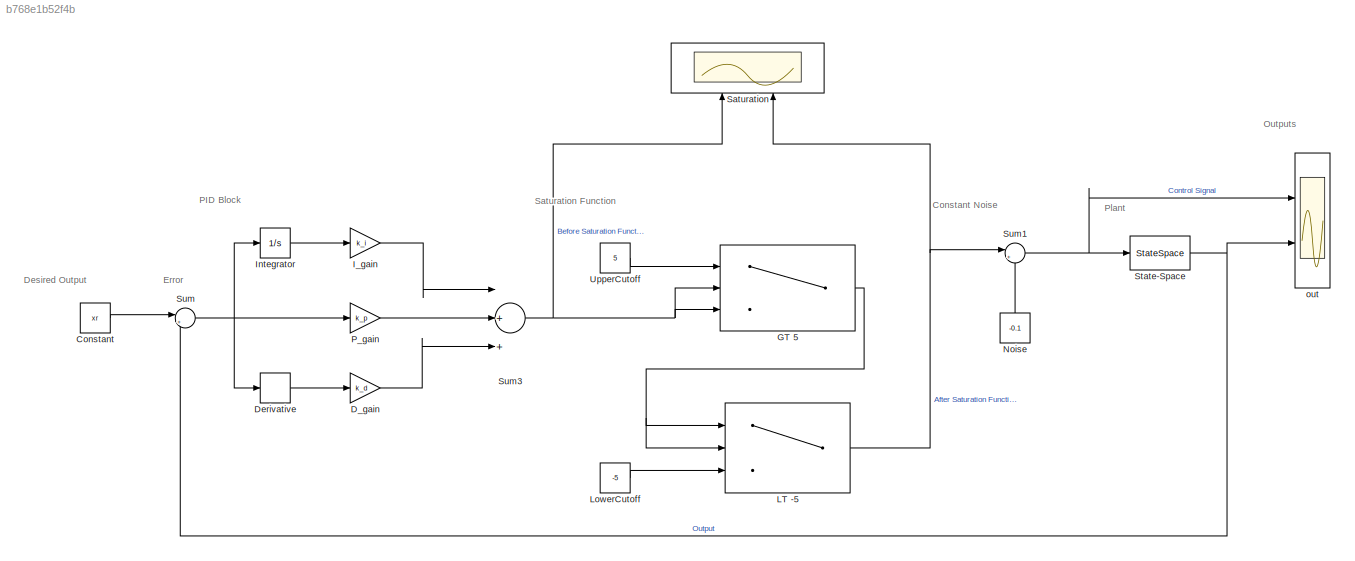
MODEL slx_b768e1b52f4b
KIND model
CONFIG AbsTol = auto
CONFIG FixedStep = auto
CONFIG MaxStep = auto
CONFIG MinStep = auto
CONFIG RelTol = auto
CONFIG SampleTimeConstraint = Unconstrained
CONFIG Solver = ode45
CONFIG SolverMode = Auto
CONFIG SolverName = ode45
CONFIG StartTime = 0.0
CONFIG StopTime = 3000
BLOCK [Constant] Constant
  Value = xr
BLOCK [Gain] D_gain
  Gain = k_d
  OutDataTypeStr = Inherit: Inherit via internal rule
  ParamDataTypeStr = Inherit: Inherit via internal rule
  SaturateOnIntegerOverflow = off
BLOCK [Derivative] Derivative
  CoefficientInTFapproximation = 1
BLOCK [Switch] GT 5
  InputSameDT = off
  SaturateOnIntegerOverflow = off
  Threshold = 5
  ZeroCross = off
BLOCK [Gain] I_gain
  Gain = k_i
  OutDataTypeStr = Inherit: Inherit via internal rule
  ParamDataTypeStr = Inherit: Inherit via internal rule
  SaturateOnIntegerOverflow = off
BLOCK [Integrator] Integrator
  Ports = [1, 1]
BLOCK [Switch] LT -5
  InputSameDT = off
  SaturateOnIntegerOverflow = off
  Threshold = -5
  ZeroCross = off
BLOCK [Constant] LowerCutoff
  Value = -5
BLOCK [Constant] Noise
  Value = -0.1
BLOCK [Gain] P_gain
  Gain = k_p
  OutDataTypeStr = Inherit: Inherit via internal rule
  ParamDataTypeStr = Inherit: Inherit via internal rule
  SaturateOnIntegerOverflow = off
BLOCK [Scope] Saturation
  Floating = off
  NumInputPorts = 2
  Ports = [2]
  SaveName = ScopeData1
  YMax = 5~5
  YMin = -5~-5
BLOCK [StateSpace] State-Space
  A = A
  B = B
  C = C
  D = D
  Ports = [1, 1]
  X0 = 0
BLOCK [Sum] Sum
  IconShape = round
  InputSameDT = off
  Inputs = |+-
  OutDataTypeStr = Inherit: Inherit via internal rule
  Ports = [2, 1]
  SaturateOnIntegerOverflow = off
BLOCK [Sum] Sum1
  IconShape = round
  InputSameDT = off
  Inputs = |++
  OutDataTypeStr = Inherit: Inherit via internal rule
  Ports = [2, 1]
  SaturateOnIntegerOverflow = off
BLOCK [Sum] Sum3
  InputSameDT = off
  Inputs = |+++|
  OutDataTypeStr = Inherit: Inherit via internal rule
  Ports = [3, 1]
  SaturateOnIntegerOverflow = off
BLOCK [Constant] UpperCutoff
  Value = 5
BLOCK [Scope] out
  Floating = off
  NumInputPorts = 2
  Ports = [2]
  YMax = 5~5
  YMin = -5~-5
ANNOTATION (root): Constant Noise
ANNOTATION (root): Desired Output
ANNOTATION (root): Error
ANNOTATION (root): Outputs
ANNOTATION (root): PID Block
ANNOTATION (root): Plant
ANNOTATION (root): Saturation Function
LINE Constant:1 -> Sum:1
LINE D_gain:1 -> Sum3:3
LINE Derivative:1 -> D_gain:1
NET GT 5:1 -> LT -5:1, LT -5:2
LINE I_gain:1 -> Sum3:1
LINE Integrator:1 -> I_gain:1
NET LT -5:1 -> Saturation:2, Sum1:1
LINE LowerCutoff:1 -> LT -5:3
LINE Noise:1 -> Sum1:2
LINE P_gain:1 -> Sum3:2
NET State-Space:1 -> Sum:2, out:2
NET Sum1:1 -> State-Space:1, out:1
NET Sum3:1 -> GT 5:2, GT 5:3, Saturation:1
NET Sum:1 -> Derivative:1, Integrator:1, P_gain:1
LINE UpperCutoff:1 -> GT 5:1
note: NET lines group one-source signal fan-out (src -> all destinations, sorted); 1:1 wires keep LINE
